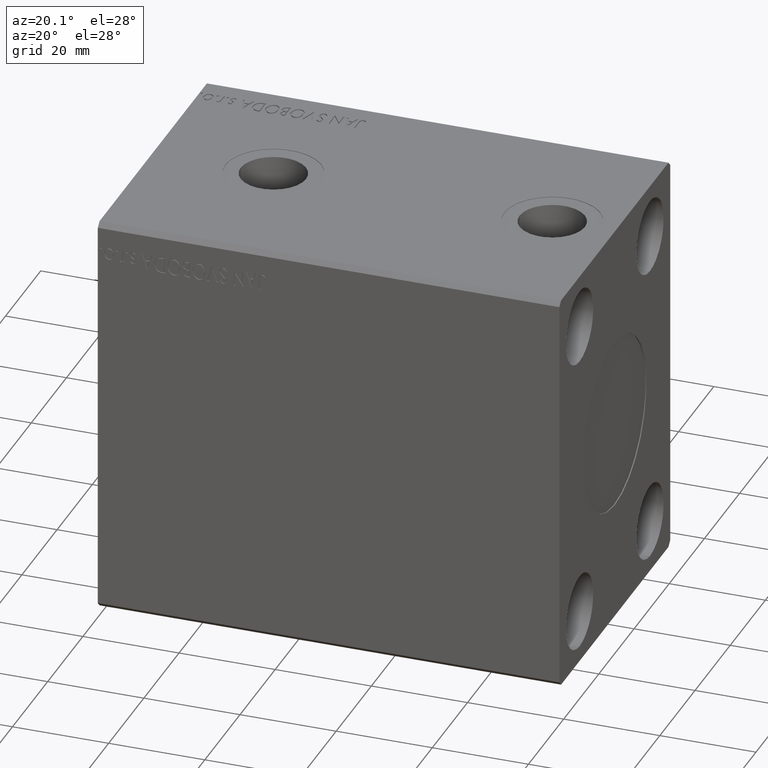
[diagram: clean part render]
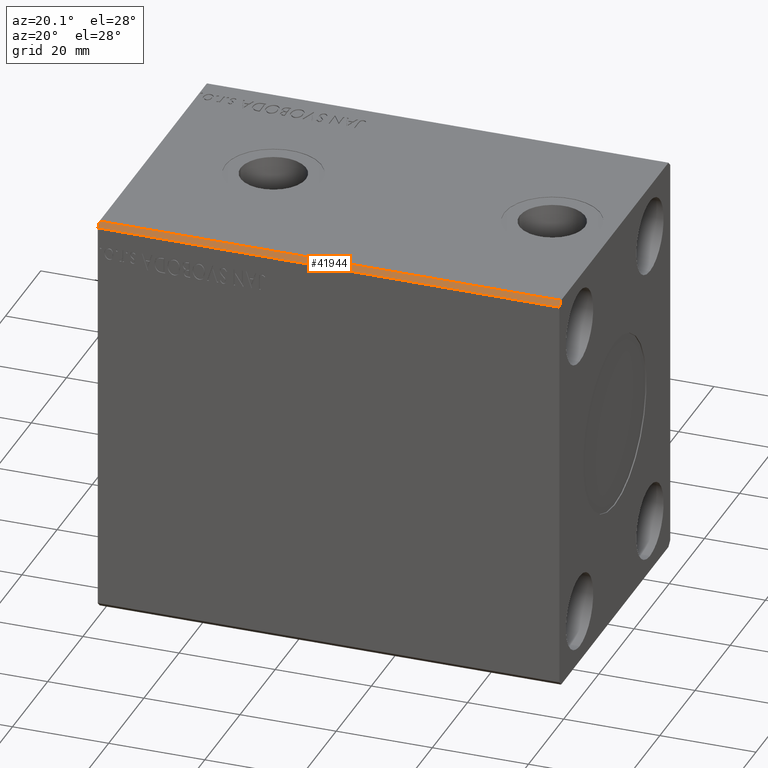
[diagram: same view with one face highlighted and labeled with its STEP entity id]
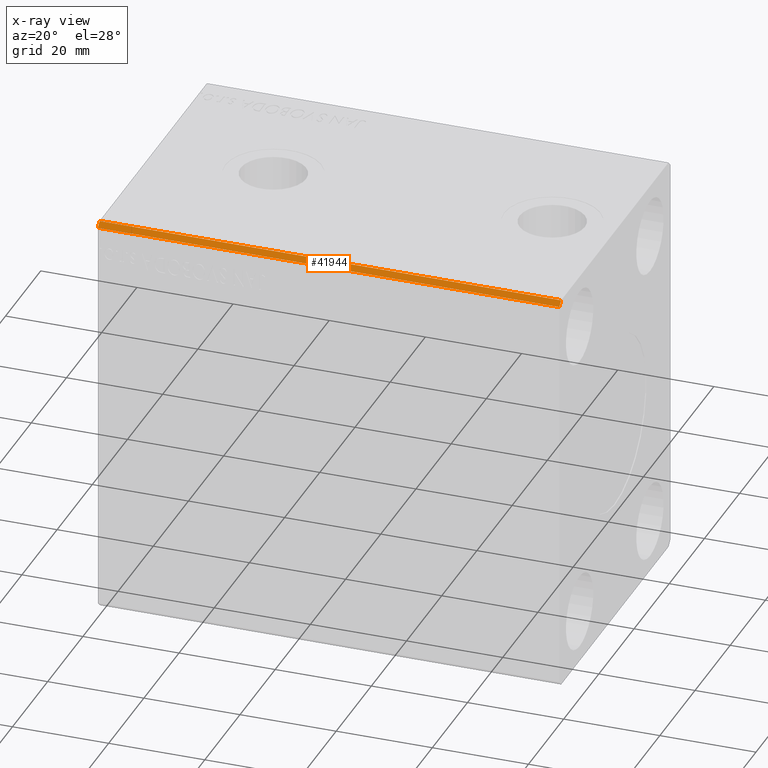
[diagram: x-ray of the same camera — body ghosted, the highlighted face saturated]
A machine part, auxiliary view. The second image highlights one B-rep face of the part: STEP entity #41944.
The next image is the same camera in x-ray: the body ghosted, the highlighted face saturated — about 0% of this face is hidden behind the body in this view.
In plain terms, the highlighted planar face has unit normal (0, 0.7071, -0.7071).
Its self-contained STEP definition (entity closure, byte-faithful):
#1349 = VERTEX_POINT ( 'NONE', #4213 ) ;
#1548 = EDGE_LOOP ( 'NONE', ( #21308, #34693, #36674, #12968 ) ) ;
#2839 = VECTOR ( 'NONE', #6792, 1000.000000000000000 ) ;
#3171 = LINE ( 'NONE', #29087, #2839 ) ;
#4213 = CARTESIAN_POINT ( 'NONE',  ( 96.00000000000000000, -30.50000000000000355, 42.49999999999999289 ) ) ;
#4282 = CARTESIAN_POINT ( 'NONE',  ( 0.000000000000000000, -30.50000000000000355, 42.49999999999999289 ) ) ;
#5931 = LINE ( 'NONE', #28855, #13388 ) ;
#6792 = DIRECTION ( 'NONE',  ( -1.000000000000000000, -0.000000000000000000, -0.000000000000000000 ) ) ;
#7481 = DIRECTION ( 'NONE',  ( 0.000000000000000000, 0.7071067811865462405, 0.7071067811865487940 ) ) ;
#8329 = DIRECTION ( 'NONE',  ( 0.000000000000000000, 0.7071067811865487940, -0.7071067811865462405 ) ) ;
#11195 = EDGE_CURVE ( 'NONE', #1349, #15045, #3171, .T. ) ;
#12968 = ORIENTED_EDGE ( 'NONE', *, *, #11195, .T. ) ;
#13388 = VECTOR ( 'NONE', #31856, 999.9999999999998863 ) ;
#15045 = VERTEX_POINT ( 'NONE', #20569 ) ;
#16861 = VECTOR ( 'NONE', #20759, 999.9999999999998863 ) ;
#17254 = VECTOR ( 'NONE', #36284, 1000.000000000000000 ) ;
#18363 = VERTEX_POINT ( 'NONE', #20839 ) ;
#19600 = EDGE_CURVE ( 'NONE', #18363, #36816, #32651, .T. ) ;
#20569 = CARTESIAN_POINT ( 'NONE',  ( 0.000000000000000000, -30.50000000000000355, 42.49999999999999289 ) ) ;
#20759 = DIRECTION ( 'NONE',  ( 0.000000000000000000, -0.7071067811865462405, -0.7071067811865489050 ) ) ;
#20839 = CARTESIAN_POINT ( 'NONE',  ( 96.00000000000000000, -31.50000000000000000, 41.49999999999999289 ) ) ;
#21308 = ORIENTED_EDGE ( 'NONE', *, *, #31396, .T. ) ;
#26853 = CARTESIAN_POINT ( 'NONE',  ( 96.00000000000000000, -31.50000000000000000, 41.49999999999999289 ) ) ;
#28855 = CARTESIAN_POINT ( 'NONE',  ( 96.00000000000000000, -30.50000000000000355, 42.49999999999999289 ) ) ;
#29087 = CARTESIAN_POINT ( 'NONE',  ( 96.00000000000000000, -30.50000000000000355, 42.49999999999999289 ) ) ;
#30138 = EDGE_CURVE ( 'NONE', #1349, #18363, #5931, .T. ) ;
#31396 = EDGE_CURVE ( 'NONE', #15045, #36816, #37042, .T. ) ;
#31856 = DIRECTION ( 'NONE',  ( 0.000000000000000000, -0.7071067811865462405, -0.7071067811865489050 ) ) ;
#32651 = LINE ( 'NONE', #26853, #17254 ) ;
#34693 = ORIENTED_EDGE ( 'NONE', *, *, #19600, .F. ) ;
#35581 = AXIS2_PLACEMENT_3D ( 'NONE', #37263, #8329, #7481 ) ;
#36284 = DIRECTION ( 'NONE',  ( -1.000000000000000000, -0.000000000000000000, -0.000000000000000000 ) ) ;
#36674 = ORIENTED_EDGE ( 'NONE', *, *, #30138, .F. ) ;
#36816 = VERTEX_POINT ( 'NONE', #40350 ) ;
#37042 = LINE ( 'NONE', #4282, #16861 ) ;
#37263 = CARTESIAN_POINT ( 'NONE',  ( 96.00000000000000000, -30.50000000000000355, 42.49999999999999289 ) ) ;
#37476 = PLANE ( 'NONE',  #35581 ) ;
#37688 = FACE_OUTER_BOUND ( 'NONE', #1548, .T. ) ;
#40350 = CARTESIAN_POINT ( 'NONE',  ( 0.000000000000000000, -31.50000000000000000, 41.49999999999999289 ) ) ;
#41944 = ADVANCED_FACE ( 'NONE', ( #37688 ), #37476, .F. ) ;